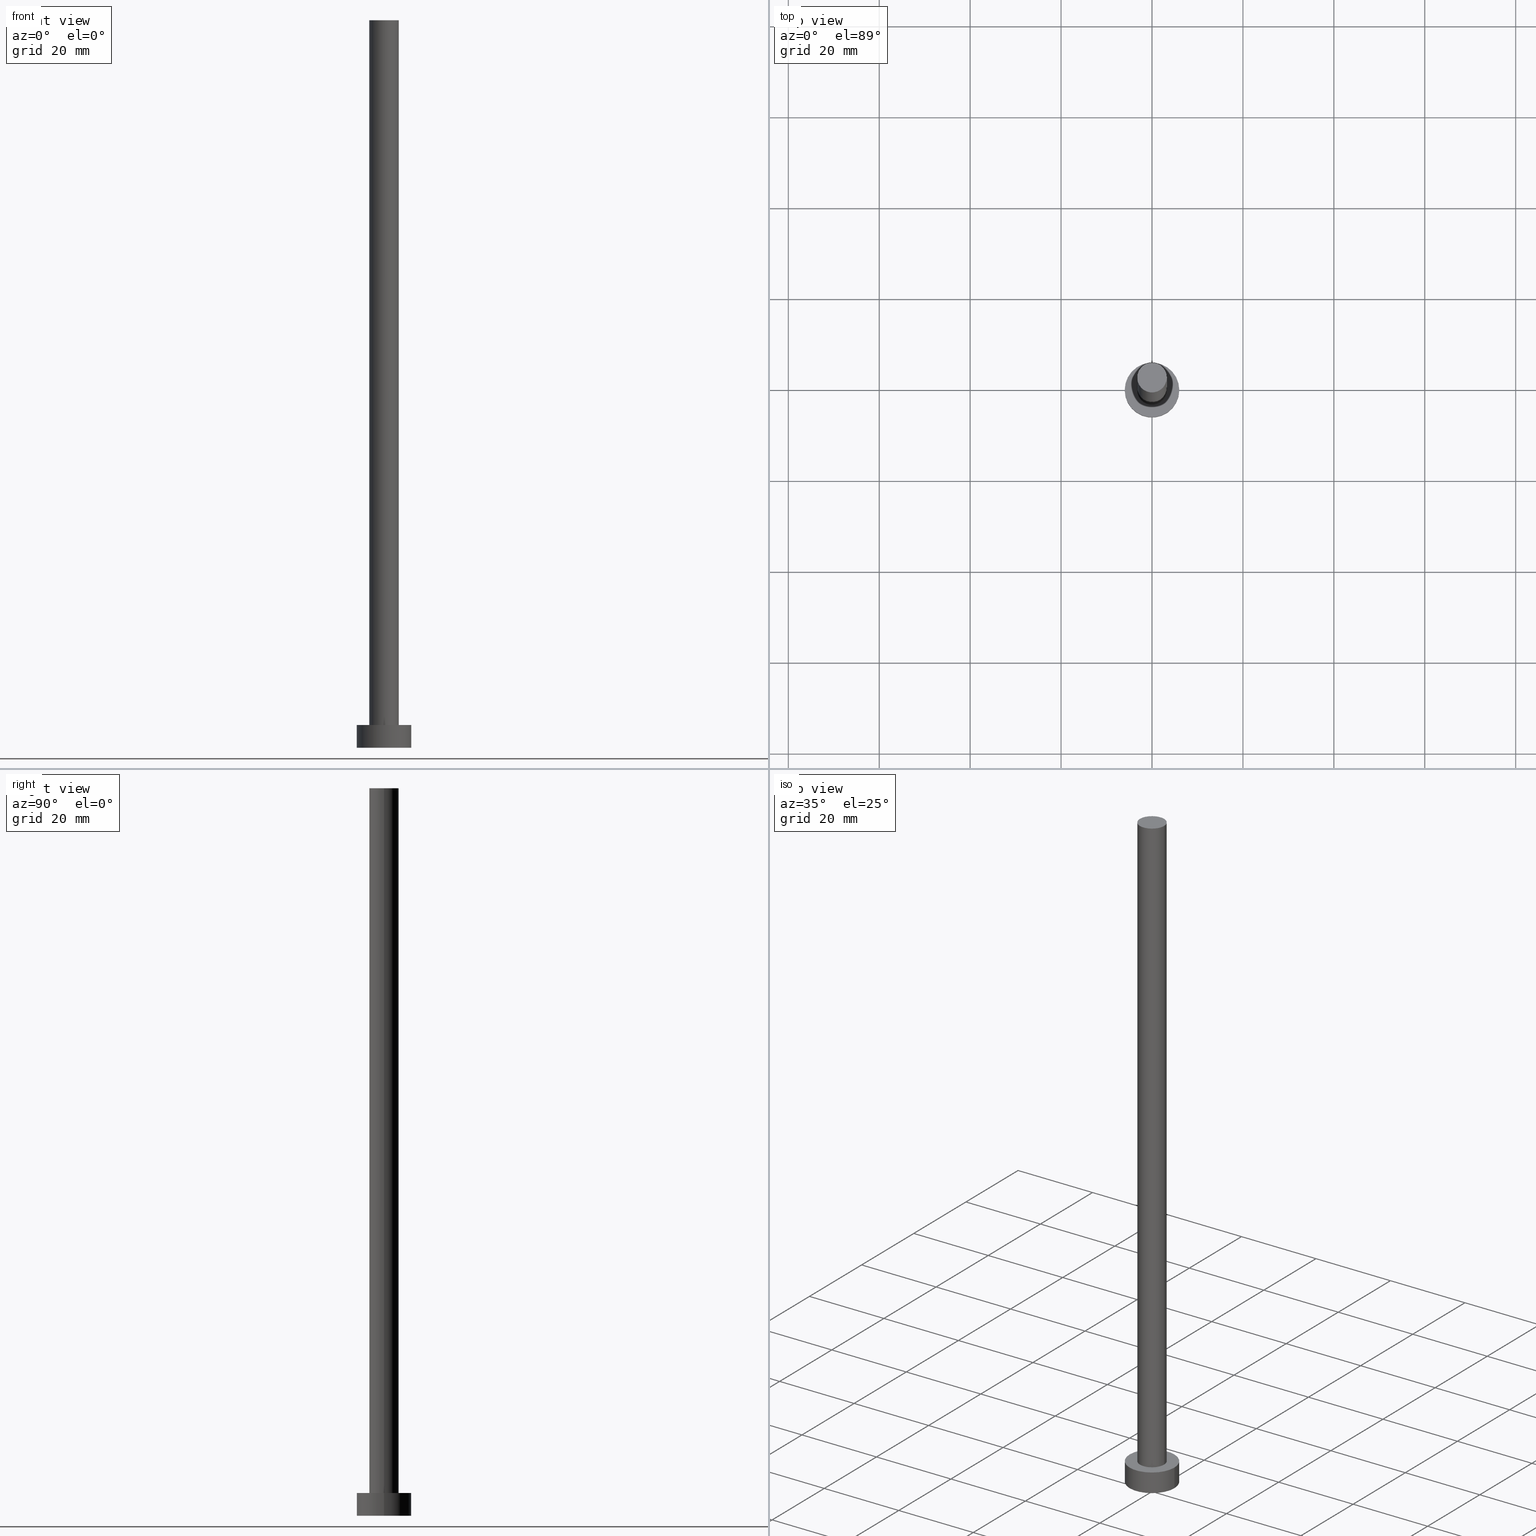
[diagram: canonical four-view strip — front | top / right | iso, engineering-drawing reading convention]
A machine part, canonical four-view strip (front | top / right | iso — engineering-drawing reading convention). The complete STEP part file that produces these views, byte-faithful:
ISO-10303-21;
HEADER;
FILE_DESCRIPTION (( 'STEP AP203' ),
    '1' );
FILE_NAME ('7509.STEP',
    '2023-02-13T15:17:33',
    ( '' ),
    ( '' ),
    'SwSTEP 2.0',
    'SolidWorks 2019',
    '' );
FILE_SCHEMA (( 'CONFIG_CONTROL_DESIGN' ));
ENDSEC;

DATA;
#1 = AXIS2_PLACEMENT_3D ( 'NONE', #111, #20, #190 ) ;
#2 = EDGE_LOOP ( 'NONE', ( #27, #63, #181, #227 ) ) ;
#3 = CARTESIAN_POINT ( 'NONE',  ( 3.250000000000000444, 3.980102097228898231E-16, 5.000000000000000000 ) ) ;
#4 = EDGE_CURVE ( 'NONE', #76, #45, #185, .T. ) ;
#5 = PERSON_AND_ORGANIZATION ( #29, #17 ) ;
#6 =( NAMED_UNIT ( * ) PLANE_ANGLE_UNIT ( ) SI_UNIT ( $, .RADIAN. ) );
#7 = AXIS2_PLACEMENT_3D ( 'NONE', #60, #201, #26 ) ;
#8 = COORDINATED_UNIVERSAL_TIME_OFFSET ( 1, 0, .AHEAD. ) ;
#9 = PRODUCT_RELATED_PRODUCT_CATEGORY ( 'detail', '', ( #175 ) ) ;
#10 = APPROVAL_DATE_TIME ( #186, #51 ) ;
#11 = CARTESIAN_POINT ( 'NONE',  ( 0.000000000000000000, 0.000000000000000000, 160.0000000000000000 ) ) ;
#12 = FACE_OUTER_BOUND ( 'NONE', #24, .T. ) ;
#13 = CARTESIAN_POINT ( 'NONE',  ( -3.250000000000000444, 0.000000000000000000, 160.0000000000000000 ) ) ;
#14 = CARTESIAN_POINT ( 'NONE',  ( 0.000000000000000000, 0.000000000000000000, 5.000000000000000000 ) ) ;
#15 = DIRECTION ( 'NONE',  ( -0.000000000000000000, -0.000000000000000000, -1.000000000000000000 ) ) ;
#16 = CARTESIAN_POINT ( 'NONE',  ( 0.000000000000000000, 0.000000000000000000, 0.000000000000000000 ) ) ;
#17 = ORGANIZATION ( 'NEUR�EN�', 'NEUR�EN�', '' ) ;
#18 = EDGE_CURVE ( 'NONE', #112, #19, #246, .T. ) ;
#19 = VERTEX_POINT ( 'NONE', #106 ) ;
#20 = DIRECTION ( 'NONE',  ( 0.000000000000000000, 0.000000000000000000, 1.000000000000000000 ) ) ;
#21 = CIRCLE ( 'NONE', #103, 6.000000000000000888 ) ;
#22 = AXIS2_PLACEMENT_3D ( 'NONE', #146, #234, #180 ) ;
#23 = APPLICATION_PROTOCOL_DEFINITION ( 'international standard', 'config_control_design', 1994, #170 ) ;
#24 = EDGE_LOOP ( 'NONE', ( #28, #149 ) ) ;
#25 = APPROVAL ( #69, 'NEUR�EN�' ) ;
#26 = DIRECTION ( 'NONE',  ( -1.000000000000000000, 0.000000000000000000, 0.000000000000000000 ) ) ;
#27 = ORIENTED_EDGE ( 'NONE', *, *, #4, .F. ) ;
#28 = ORIENTED_EDGE ( 'NONE', *, *, #157, .F. ) ;
#29 = PERSON ( 'NEUR�EN�', 'NEUR�EN�', 'NEUR�EN�', ('NEUR�EN�'), ('NEUR�EN�'), ('NEUR�EN�') ) ;
#30 = APPROVAL_ROLE ( '' ) ;
#31 = AXIS2_PLACEMENT_3D ( 'NONE', #94, #120, #179 ) ;
#32 = PERSON_AND_ORGANIZATION_ROLE ( 'design_supplier' ) ;
#33 = CARTESIAN_POINT ( 'NONE',  ( -3.250000000000000444, 0.000000000000000000, 5.000000000000000000 ) ) ;
#34 = DIRECTION ( 'NONE',  ( 0.000000000000000000, 0.000000000000000000, 1.000000000000000000 ) ) ;
#35 = CALENDAR_DATE ( 2023, 13, 2 ) ;
#36 = DIRECTION ( 'NONE',  ( 1.000000000000000000, 0.000000000000000000, 0.000000000000000000 ) ) ;
#37 = PERSON_AND_ORGANIZATION_ROLE ( 'design_owner' ) ;
#38 = MANIFOLD_SOLID_BREP ( 'P�idat vysunut�m3', #44 ) ;
#39 = PERSON_AND_ORGANIZATION_ROLE ( 'classification_officer' ) ;
#40 = AXIS2_PLACEMENT_3D ( 'NONE', #48, #230, #66 ) ;
#41 = LINE ( 'NONE', #113, #244 ) ;
#42 = DIRECTION ( 'NONE',  ( -0.000000000000000000, -0.000000000000000000, -1.000000000000000000 ) ) ;
#43 = EDGE_LOOP ( 'NONE', ( #46, #135 ) ) ;
#44 = CLOSED_SHELL ( 'NONE', ( #211, #119, #247, #199, #217, #96, #174 ) ) ;
#45 = VERTEX_POINT ( 'NONE', #52 ) ;
#46 = ORIENTED_EDGE ( 'NONE', *, *, #18, .T. ) ;
#47 = CARTESIAN_POINT ( 'NONE',  ( 0.000000000000000000, 0.000000000000000000, 160.0000000000000000 ) ) ;
#48 = CARTESIAN_POINT ( 'NONE',  ( 0.000000000000000000, 0.000000000000000000, 0.000000000000000000 ) ) ;
#49 = CALENDAR_DATE ( 2023, 13, 2 ) ;
#50 = DATE_TIME_ROLE ( 'classification_date' ) ;
#51 = APPROVAL ( #131, 'NEUR�EN�' ) ;
#52 = CARTESIAN_POINT ( 'NONE',  ( 6.000000000000000888, 7.347880794884120722E-16, 0.000000000000000000 ) ) ;
#53 = LINE ( 'NONE', #255, #98 ) ;
#54 = EDGE_CURVE ( 'NONE', #19, #193, #164, .T. ) ;
#55 = APPROVAL_PERSON_ORGANIZATION ( #143, #51, #209 ) ;
#56 = ORIENTED_EDGE ( 'NONE', *, *, #100, .T. ) ;
#57 = EDGE_CURVE ( 'NONE', #19, #112, #221, .T. ) ;
#58 = FACE_OUTER_BOUND ( 'NONE', #62, .T. ) ;
#59 = CARTESIAN_POINT ( 'NONE',  ( 0.000000000000000000, 0.000000000000000000, 160.0000000000000000 ) ) ;
#60 = CARTESIAN_POINT ( 'NONE',  ( 0.000000000000000000, 0.000000000000000000, 5.000000000000000000 ) ) ;
#61 = CC_DESIGN_PERSON_AND_ORGANIZATION_ASSIGNMENT ( #5, #81, ( #105 ) ) ;
#62 = EDGE_LOOP ( 'NONE', ( #223, #154 ) ) ;
#63 = ORIENTED_EDGE ( 'NONE', *, *, #224, .F. ) ;
#64 = VECTOR ( 'NONE', #188, 1000.000000000000000 ) ;
#65 = FACE_OUTER_BOUND ( 'NONE', #43, .T. ) ;
#66 = DIRECTION ( 'NONE',  ( 1.000000000000000000, 0.000000000000000000, 0.000000000000000000 ) ) ;
#67 = PRODUCT_DEFINITION ( 'NEZN�M�', '', #105, #182 ) ;
#68 = PERSON_AND_ORGANIZATION ( #29, #17 ) ;
#69 = APPROVAL_STATUS ( 'not_yet_approved' ) ;
#70 = COORDINATED_UNIVERSAL_TIME_OFFSET ( 1, 0, .AHEAD. ) ;
#71 = CARTESIAN_POINT ( 'NONE',  ( 0.000000000000000000, 0.000000000000000000, 5.000000000000000000 ) ) ;
#72 = APPROVAL ( #88, 'NEUR�EN�' ) ;
#73 = DIRECTION ( 'NONE',  ( -0.000000000000000000, -0.000000000000000000, -1.000000000000000000 ) ) ;
#74 = DIRECTION ( 'NONE',  ( 0.000000000000000000, 0.000000000000000000, 1.000000000000000000 ) ) ;
#75 = CC_DESIGN_APPROVAL ( #25, ( #105 ) ) ;
#76 = VERTEX_POINT ( 'NONE', #197 ) ;
#77 = ORIENTED_EDGE ( 'NONE', *, *, #236, .F. ) ;
#78 =( GEOMETRIC_REPRESENTATION_CONTEXT ( 3 ) GLOBAL_UNCERTAINTY_ASSIGNED_CONTEXT ( ( #245 ) ) GLOBAL_UNIT_ASSIGNED_CONTEXT ( ( #219, #6, #205 ) ) REPRESENTATION_CONTEXT ( 'NONE', 'WORKASPACE' ) );
#79 = ORIENTED_EDGE ( 'NONE', *, *, #166, .F. ) ;
#80 = PLANE ( 'NONE',  #165 ) ;
#81 = PERSON_AND_ORGANIZATION_ROLE ( 'creator' ) ;
#82 = CIRCLE ( 'NONE', #160, 3.250000000000000444 ) ;
#83 = ORIENTED_EDGE ( 'NONE', *, *, #202, .T. ) ;
#84 = DATE_AND_TIME ( #35, #200 ) ;
#85 = SHAPE_DEFINITION_REPRESENTATION ( #173, #250 ) ;
#86 = EDGE_CURVE ( 'NONE', #76, #243, #121, .T. ) ;
#87 = CC_DESIGN_APPROVAL ( #72, ( #67 ) ) ;
#88 = APPROVAL_STATUS ( 'not_yet_approved' ) ;
#89 = CARTESIAN_POINT ( 'NONE',  ( 0.000000000000000000, 0.000000000000000000, 0.000000000000000000 ) ) ;
#90 = DIRECTION ( 'NONE',  ( -0.000000000000000000, -0.000000000000000000, -1.000000000000000000 ) ) ;
#91 = FACE_OUTER_BOUND ( 'NONE', #137, .T. ) ;
#92 = CC_DESIGN_PERSON_AND_ORGANIZATION_ASSIGNMENT ( #184, #39, ( #240 ) ) ;
#93 = CC_DESIGN_SECURITY_CLASSIFICATION ( #240, ( #105 ) ) ;
#94 = CARTESIAN_POINT ( 'NONE',  ( 0.000000000000000000, 0.000000000000000000, 5.000000000000000000 ) ) ;
#95 = AXIS2_PLACEMENT_3D ( 'NONE', #215, #42, #214 ) ;
#96 = ADVANCED_FACE ( 'NONE', ( #115 ), #147, .T. ) ;
#97 = CARTESIAN_POINT ( 'NONE',  ( -6.000000000000000888, 0.000000000000000000, 5.000000000000000000 ) ) ;
#98 = VECTOR ( 'NONE', #73, 1000.000000000000000 ) ;
#99 = LOCAL_TIME ( 16, 17, 33.00000000000000000, #70 ) ;
#100 = EDGE_CURVE ( 'NONE', #45, #142, #233, .T. ) ;
#101 = ORIENTED_EDGE ( 'NONE', *, *, #4, .T. ) ;
#102 = APPROVAL_DATE_TIME ( #126, #25 ) ;
#103 = AXIS2_PLACEMENT_3D ( 'NONE', #16, #237, #218 ) ;
#104 = SECURITY_CLASSIFICATION_LEVEL ( 'unclassified' ) ;
#105 = PRODUCT_DEFINITION_FORMATION_WITH_SPECIFIED_SOURCE ( 'LIBOVOLN�', '', #175, .NOT_KNOWN. ) ;
#106 = CARTESIAN_POINT ( 'NONE',  ( 3.250000000000000444, 3.980102097228898231E-16, 160.0000000000000000 ) ) ;
#107 = APPROVAL_DATE_TIME ( #228, #72 ) ;
#108 = PERSON_AND_ORGANIZATION_ROLE ( 'creator' ) ;
#109 = COORDINATED_UNIVERSAL_TIME_OFFSET ( 1, 0, .AHEAD. ) ;
#110 = DIRECTION ( 'NONE',  ( -1.000000000000000000, 0.000000000000000000, 0.000000000000000000 ) ) ;
#111 = CARTESIAN_POINT ( 'NONE',  ( 0.000000000000000000, 0.000000000000000000, 0.000000000000000000 ) ) ;
#112 = VERTEX_POINT ( 'NONE', #13 ) ;
#113 = CARTESIAN_POINT ( 'NONE',  ( -6.000000000000000888, 0.000000000000000000, 5.000000000000000000 ) ) ;
#114 = EDGE_CURVE ( 'NONE', #243, #142, #41, .T. ) ;
#115 = FACE_OUTER_BOUND ( 'NONE', #235, .T. ) ;
#116 = ORIENTED_EDGE ( 'NONE', *, *, #236, .T. ) ;
#117 = EDGE_LOOP ( 'NONE', ( #79, #77 ) ) ;
#118 = APPLICATION_CONTEXT ( 'configuration controlled 3d designs of mechanical parts and assemblies' ) ;
#119 = ADVANCED_FACE ( 'NONE', ( #91 ), #169, .T. ) ;
#120 = DIRECTION ( 'NONE',  ( 0.000000000000000000, 0.000000000000000000, 1.000000000000000000 ) ) ;
#121 = CIRCLE ( 'NONE', #213, 6.000000000000000888 ) ;
#122 = DIRECTION ( 'NONE',  ( 0.000000000000000000, 0.000000000000000000, 1.000000000000000000 ) ) ;
#123 = CC_DESIGN_APPROVAL ( #51, ( #240 ) ) ;
#124 = COORDINATED_UNIVERSAL_TIME_OFFSET ( 1, 0, .AHEAD. ) ;
#125 = FACE_BOUND ( 'NONE', #117, .T. ) ;
#126 = DATE_AND_TIME ( #162, #155 ) ;
#127 = CARTESIAN_POINT ( 'NONE',  ( 0.000000000000000000, 0.000000000000000000, 160.0000000000000000 ) ) ;
#128 = CALENDAR_DATE ( 2023, 13, 2 ) ;
#129 = CC_DESIGN_DATE_AND_TIME_ASSIGNMENT ( #84, #50, ( #240 ) ) ;
#130 = CARTESIAN_POINT ( 'NONE',  ( 6.000000000000000888, 7.347880794884120722E-16, 5.000000000000000000 ) ) ;
#131 = APPROVAL_STATUS ( 'not_yet_approved' ) ;
#132 = CIRCLE ( 'NONE', #22, 6.000000000000000888 ) ;
#133 = LOCAL_TIME ( 16, 17, 33.00000000000000000, #124 ) ;
#134 = DIRECTION ( 'NONE',  ( 1.000000000000000000, 0.000000000000000000, 0.000000000000000000 ) ) ;
#135 = ORIENTED_EDGE ( 'NONE', *, *, #57, .T. ) ;
#136 = AXIS2_PLACEMENT_3D ( 'NONE', #89, #167, #251 ) ;
#137 = EDGE_LOOP ( 'NONE', ( #156, #101, #56, #212 ) ) ;
#138 = CC_DESIGN_PERSON_AND_ORGANIZATION_ASSIGNMENT ( #68, #108, ( #67 ) ) ;
#139 = MECHANICAL_CONTEXT ( 'NONE', #170, 'mechanical' ) ;
#140 = APPROVAL_ROLE ( '' ) ;
#141 = CC_DESIGN_DATE_AND_TIME_ASSIGNMENT ( #183, #206, ( #67 ) ) ;
#142 = VERTEX_POINT ( 'NONE', #150 ) ;
#143 = PERSON_AND_ORGANIZATION ( #29, #17 ) ;
#144 = PERSON_AND_ORGANIZATION ( #29, #17 ) ;
#145 = CARTESIAN_POINT ( 'NONE',  ( 0.000000000000000000, 0.000000000000000000, 5.000000000000000000 ) ) ;
#146 = CARTESIAN_POINT ( 'NONE',  ( 0.000000000000000000, 0.000000000000000000, 5.000000000000000000 ) ) ;
#147 = CYLINDRICAL_SURFACE ( 'NONE', #95, 3.250000000000000444 ) ;
#148 = DIRECTION ( 'NONE',  ( -0.000000000000000000, -0.000000000000000000, -1.000000000000000000 ) ) ;
#149 = ORIENTED_EDGE ( 'NONE', *, *, #100, .F. ) ;
#150 = CARTESIAN_POINT ( 'NONE',  ( -6.000000000000000888, 0.000000000000000000, 0.000000000000000000 ) ) ;
#151 = FACE_OUTER_BOUND ( 'NONE', #176, .T. ) ;
#152 = CARTESIAN_POINT ( 'NONE',  ( 0.000000000000000000, 0.000000000000000000, 5.000000000000000000 ) ) ;
#153 = ORIENTED_EDGE ( 'NONE', *, *, #166, .T. ) ;
#154 = ORIENTED_EDGE ( 'NONE', *, *, #86, .T. ) ;
#155 = LOCAL_TIME ( 16, 17, 33.00000000000000000, #187 ) ;
#156 = ORIENTED_EDGE ( 'NONE', *, *, #86, .F. ) ;
#157 = EDGE_CURVE ( 'NONE', #142, #45, #21, .T. ) ;
#158 = ORIENTED_EDGE ( 'NONE', *, *, #202, .F. ) ;
#159 = AXIS2_PLACEMENT_3D ( 'NONE', #71, #148, #194 ) ;
#160 = AXIS2_PLACEMENT_3D ( 'NONE', #152, #242, #222 ) ;
#161 = CALENDAR_DATE ( 2023, 13, 2 ) ;
#162 = CALENDAR_DATE ( 2023, 13, 2 ) ;
#163 = CC_DESIGN_PERSON_AND_ORGANIZATION_ASSIGNMENT ( #144, #37, ( #175 ) ) ;
#164 = LINE ( 'NONE', #248, #64 ) ;
#165 = AXIS2_PLACEMENT_3D ( 'NONE', #47, #122, #177 ) ;
#166 = EDGE_CURVE ( 'NONE', #198, #193, #252, .T. ) ;
#167 = DIRECTION ( 'NONE',  ( 0.000000000000000000, 0.000000000000000000, 1.000000000000000000 ) ) ;
#168 = PLANE ( 'NONE',  #136 ) ;
#169 = CYLINDRICAL_SURFACE ( 'NONE', #159, 6.000000000000000888 ) ;
#170 = APPLICATION_CONTEXT ( 'configuration controlled 3d designs of mechanical parts and assemblies' ) ;
#171 = CC_DESIGN_PERSON_AND_ORGANIZATION_ASSIGNMENT ( #207, #32, ( #105 ) ) ;
#172 = PLANE ( 'NONE',  #204 ) ;
#173 = PRODUCT_DEFINITION_SHAPE ( 'NONE', 'NONE',  #67 ) ;
#174 = ADVANCED_FACE ( 'NONE', ( #65 ), #80, .T. ) ;
#175 = PRODUCT ( '7509', '7509', '', ( #139 ) ) ;
#176 = EDGE_LOOP ( 'NONE', ( #191, #203, #116, #158 ) ) ;
#177 = DIRECTION ( 'NONE',  ( 1.000000000000000000, 0.000000000000000000, -0.000000000000000000 ) ) ;
#178 = ORIENTED_EDGE ( 'NONE', *, *, #18, .F. ) ;
#179 = DIRECTION ( 'NONE',  ( 1.000000000000000000, 0.000000000000000000, 0.000000000000000000 ) ) ;
#180 = DIRECTION ( 'NONE',  ( 1.000000000000000000, 0.000000000000000000, 0.000000000000000000 ) ) ;
#181 = ORIENTED_EDGE ( 'NONE', *, *, #114, .T. ) ;
#182 = DESIGN_CONTEXT ( 'detailed design', #118, 'design' ) ;
#183 = DATE_AND_TIME ( #49, #133 ) ;
#184 = PERSON_AND_ORGANIZATION ( #29, #17 ) ;
#185 = LINE ( 'NONE', #130, #216 ) ;
#186 = DATE_AND_TIME ( #128, #99 ) ;
#187 = COORDINATED_UNIVERSAL_TIME_OFFSET ( 1, 0, .AHEAD. ) ;
#188 = DIRECTION ( 'NONE',  ( -0.000000000000000000, -0.000000000000000000, -1.000000000000000000 ) ) ;
#189 = LOCAL_TIME ( 16, 17, 33.00000000000000000, #109 ) ;
#190 = DIRECTION ( 'NONE',  ( 1.000000000000000000, 0.000000000000000000, 0.000000000000000000 ) ) ;
#191 = ORIENTED_EDGE ( 'NONE', *, *, #57, .F. ) ;
#192 = DIRECTION ( 'NONE',  ( 0.000000000000000000, 0.000000000000000000, 1.000000000000000000 ) ) ;
#193 = VERTEX_POINT ( 'NONE', #3 ) ;
#194 = DIRECTION ( 'NONE',  ( -1.000000000000000000, 0.000000000000000000, 0.000000000000000000 ) ) ;
#195 = DIRECTION ( 'NONE',  ( 1.000000000000000000, 0.000000000000000000, -0.000000000000000000 ) ) ;
#196 = DIRECTION ( 'NONE',  ( 0.000000000000000000, 0.000000000000000000, 1.000000000000000000 ) ) ;
#197 = CARTESIAN_POINT ( 'NONE',  ( 6.000000000000000888, 7.347880794884120722E-16, 5.000000000000000000 ) ) ;
#198 = VERTEX_POINT ( 'NONE', #33 ) ;
#199 = ADVANCED_FACE ( 'NONE', ( #125, #58 ), #172, .T. ) ;
#200 = LOCAL_TIME ( 16, 17, 33.00000000000000000, #8 ) ;
#201 = DIRECTION ( 'NONE',  ( -0.000000000000000000, -0.000000000000000000, -1.000000000000000000 ) ) ;
#202 = EDGE_CURVE ( 'NONE', #112, #198, #53, .T. ) ;
#203 = ORIENTED_EDGE ( 'NONE', *, *, #54, .T. ) ;
#204 = AXIS2_PLACEMENT_3D ( 'NONE', #14, #74, #195 ) ;
#205 =( NAMED_UNIT ( * ) SI_UNIT ( $, .STERADIAN. ) SOLID_ANGLE_UNIT ( ) );
#206 = DATE_TIME_ROLE ( 'creation_date' ) ;
#207 = PERSON_AND_ORGANIZATION ( #29, #17 ) ;
#208 = APPROVAL_PERSON_ORGANIZATION ( #249, #25, #30 ) ;
#209 = APPROVAL_ROLE ( '' ) ;
#210 = DIRECTION ( 'NONE',  ( -0.000000000000000000, -0.000000000000000000, -1.000000000000000000 ) ) ;
#211 = ADVANCED_FACE ( 'NONE', ( #151 ), #239, .T. ) ;
#212 = ORIENTED_EDGE ( 'NONE', *, *, #114, .F. ) ;
#213 = AXIS2_PLACEMENT_3D ( 'NONE', #145, #196, #253 ) ;
#214 = DIRECTION ( 'NONE',  ( -1.000000000000000000, 0.000000000000000000, 0.000000000000000000 ) ) ;
#215 = CARTESIAN_POINT ( 'NONE',  ( 0.000000000000000000, 0.000000000000000000, 160.0000000000000000 ) ) ;
#216 = VECTOR ( 'NONE', #210, 1000.000000000000000 ) ;
#217 = ADVANCED_FACE ( 'NONE', ( #12 ), #168, .F. ) ;
#218 = DIRECTION ( 'NONE',  ( 1.000000000000000000, 0.000000000000000000, 0.000000000000000000 ) ) ;
#219 =( LENGTH_UNIT ( ) NAMED_UNIT ( * ) SI_UNIT ( .MILLI., .METRE. ) );
#220 = ORIENTED_EDGE ( 'NONE', *, *, #54, .F. ) ;
#221 = CIRCLE ( 'NONE', #238, 3.250000000000000444 ) ;
#222 = DIRECTION ( 'NONE',  ( 1.000000000000000000, 0.000000000000000000, 0.000000000000000000 ) ) ;
#223 = ORIENTED_EDGE ( 'NONE', *, *, #224, .T. ) ;
#224 = EDGE_CURVE ( 'NONE', #243, #76, #132, .T. ) ;
#225 = FACE_OUTER_BOUND ( 'NONE', #2, .T. ) ;
#226 = AXIS2_PLACEMENT_3D ( 'NONE', #127, #34, #36 ) ;
#227 = ORIENTED_EDGE ( 'NONE', *, *, #157, .T. ) ;
#228 = DATE_AND_TIME ( #161, #189 ) ;
#229 = APPLICATION_PROTOCOL_DEFINITION ( 'international standard', 'config_control_design', 1994, #118 ) ;
#230 = DIRECTION ( 'NONE',  ( 0.000000000000000000, 0.000000000000000000, 1.000000000000000000 ) ) ;
#231 = APPROVAL_PERSON_ORGANIZATION ( #232, #72, #140 ) ;
#232 = PERSON_AND_ORGANIZATION ( #29, #17 ) ;
#233 = CIRCLE ( 'NONE', #1, 6.000000000000000888 ) ;
#234 = DIRECTION ( 'NONE',  ( 0.000000000000000000, 0.000000000000000000, 1.000000000000000000 ) ) ;
#235 = EDGE_LOOP ( 'NONE', ( #220, #178, #83, #153 ) ) ;
#236 = EDGE_CURVE ( 'NONE', #193, #198, #82, .T. ) ;
#237 = DIRECTION ( 'NONE',  ( 0.000000000000000000, 0.000000000000000000, 1.000000000000000000 ) ) ;
#238 = AXIS2_PLACEMENT_3D ( 'NONE', #11, #192, #134 ) ;
#239 = CYLINDRICAL_SURFACE ( 'NONE', #254, 3.250000000000000444 ) ;
#240 = SECURITY_CLASSIFICATION ( '', '', #104 ) ;
#241 = CYLINDRICAL_SURFACE ( 'NONE', #7, 6.000000000000000888 ) ;
#242 = DIRECTION ( 'NONE',  ( 0.000000000000000000, 0.000000000000000000, 1.000000000000000000 ) ) ;
#243 = VERTEX_POINT ( 'NONE', #97 ) ;
#244 = VECTOR ( 'NONE', #15, 1000.000000000000000 ) ;
#245 = UNCERTAINTY_MEASURE_WITH_UNIT (LENGTH_MEASURE( 1.000000000000000082E-05 ), #219, 'distance_accuracy_value', 'NONE');
#246 = CIRCLE ( 'NONE', #226, 3.250000000000000444 ) ;
#247 = ADVANCED_FACE ( 'NONE', ( #225 ), #241, .T. ) ;
#248 = CARTESIAN_POINT ( 'NONE',  ( 3.250000000000000444, 3.980102097228898231E-16, 160.0000000000000000 ) ) ;
#249 = PERSON_AND_ORGANIZATION ( #29, #17 ) ;
#250 = ADVANCED_BREP_SHAPE_REPRESENTATION ( '7509', ( #38, #40 ), #78 ) ;
#251 = DIRECTION ( 'NONE',  ( 1.000000000000000000, 0.000000000000000000, -0.000000000000000000 ) ) ;
#252 = CIRCLE ( 'NONE', #31, 3.250000000000000444 ) ;
#253 = DIRECTION ( 'NONE',  ( 1.000000000000000000, 0.000000000000000000, 0.000000000000000000 ) ) ;
#254 = AXIS2_PLACEMENT_3D ( 'NONE', #59, #90, #110 ) ;
#255 = CARTESIAN_POINT ( 'NONE',  ( -3.250000000000000444, 0.000000000000000000, 160.0000000000000000 ) ) ;
ENDSEC;
END-ISO-10303-21;
